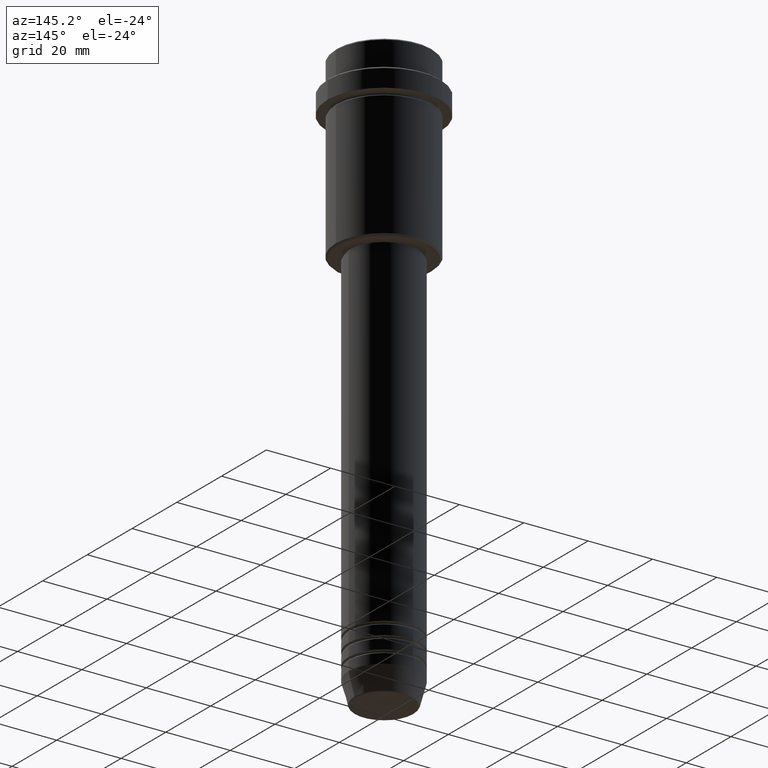
[diagram: clean part render]
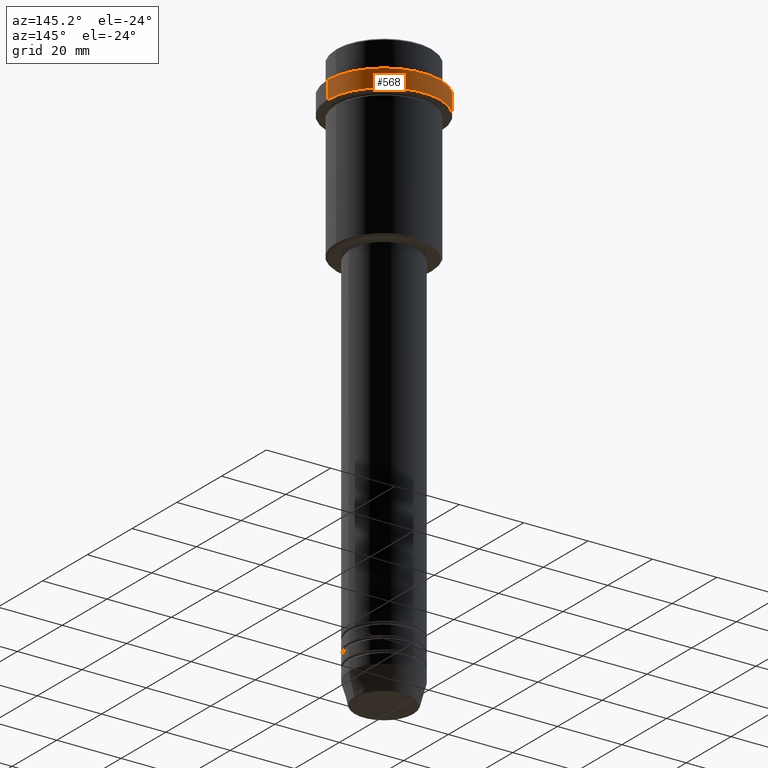
[diagram: same view with one face highlighted and labeled with its STEP entity id]
A machine part, auxiliary view. The second image highlights one B-rep face of the part: STEP entity #568.
In plain terms, the highlighted cylindrical surface (partial cylindrical patch) has radius 17.5 mm, axis along (-0, -0, 1).
Its self-contained STEP definition (entity closure, byte-faithful):
#37 = CIRCLE ( 'NONE', #658, 17.50000000000000000 ) ;
#96 = VERTEX_POINT ( 'NONE', #891 ) ;
#120 = EDGE_CURVE ( 'NONE', #700, #96, #144, .T. ) ;
#123 = ORIENTED_EDGE ( 'NONE', *, *, #276, .F. ) ;
#130 = CIRCLE ( 'NONE', #1136, 17.50000000000000000 ) ;
#144 = LINE ( 'NONE', #336, #954 ) ;
#172 = CARTESIAN_POINT ( 'NONE',  ( 17.50000000000000000, 0.000000000000000000, 0.000000000000000000 ) ) ;
#192 = CARTESIAN_POINT ( 'NONE',  ( 17.50000000000000000, 0.000000000000000000, -9.500000000000000000 ) ) ;
#217 = CARTESIAN_POINT ( 'NONE',  ( 0.000000000000000000, 0.000000000000000000, -9.500000000000000000 ) ) ;
#237 = DIRECTION ( 'NONE',  ( -0.000000000000000000, -0.000000000000000000, 1.000000000000000000 ) ) ;
#256 = VERTEX_POINT ( 'NONE', #1361 ) ;
#276 = EDGE_CURVE ( 'NONE', #256, #734, #1033, .T. ) ;
#336 = CARTESIAN_POINT ( 'NONE',  ( -17.50000000000000000, 2.143131898507868248E-15, 0.000000000000000000 ) ) ;
#346 = CARTESIAN_POINT ( 'NONE',  ( 0.000000000000000000, 0.000000000000000000, -15.00000000000000000 ) ) ;
#506 = ORIENTED_EDGE ( 'NONE', *, *, #933, .T. ) ;
#551 = EDGE_CURVE ( 'NONE', #256, #700, #130, .T. ) ;
#563 = DIRECTION ( 'NONE',  ( -0.000000000000000000, -0.000000000000000000, 1.000000000000000000 ) ) ;
#568 = ADVANCED_FACE ( 'NONE', ( #577 ), #690, .T. ) ;
#577 = FACE_OUTER_BOUND ( 'NONE', #1017, .T. ) ;
#582 = DIRECTION ( 'NONE',  ( -0.000000000000000000, -0.000000000000000000, 1.000000000000000000 ) ) ;
#655 = DIRECTION ( 'NONE',  ( 0.000000000000000000, 0.000000000000000000, -1.000000000000000000 ) ) ;
#658 = AXIS2_PLACEMENT_3D ( 'NONE', #217, #655, #1300 ) ;
#690 = CYLINDRICAL_SURFACE ( 'NONE', #1224, 17.50000000000000000 ) ;
#700 = VERTEX_POINT ( 'NONE', #961 ) ;
#734 = VERTEX_POINT ( 'NONE', #192 ) ;
#787 = CARTESIAN_POINT ( 'NONE',  ( 0.000000000000000000, 0.000000000000000000, 0.000000000000000000 ) ) ;
#891 = CARTESIAN_POINT ( 'NONE',  ( -17.50000000000000000, 2.143131898507868248E-15, -9.500000000000000000 ) ) ;
#908 = DIRECTION ( 'NONE',  ( 1.000000000000000000, 0.000000000000000000, 0.000000000000000000 ) ) ;
#933 = EDGE_CURVE ( 'NONE', #96, #734, #37, .T. ) ;
#954 = VECTOR ( 'NONE', #237, 1000.000000000000000 ) ;
#961 = CARTESIAN_POINT ( 'NONE',  ( -17.50000000000000000, 2.143131898507868248E-15, -15.00000000000000000 ) ) ;
#1017 = EDGE_LOOP ( 'NONE', ( #1034, #1219, #506, #123 ) ) ;
#1033 = LINE ( 'NONE', #172, #1197 ) ;
#1034 = ORIENTED_EDGE ( 'NONE', *, *, #551, .T. ) ;
#1128 = DIRECTION ( 'NONE',  ( 1.000000000000000000, 0.000000000000000000, 0.000000000000000000 ) ) ;
#1136 = AXIS2_PLACEMENT_3D ( 'NONE', #346, #563, #1128 ) ;
#1177 = DIRECTION ( 'NONE',  ( -0.000000000000000000, -0.000000000000000000, 1.000000000000000000 ) ) ;
#1197 = VECTOR ( 'NONE', #1177, 1000.000000000000000 ) ;
#1219 = ORIENTED_EDGE ( 'NONE', *, *, #120, .T. ) ;
#1224 = AXIS2_PLACEMENT_3D ( 'NONE', #787, #582, #908 ) ;
#1300 = DIRECTION ( 'NONE',  ( 1.000000000000000000, 0.000000000000000000, 0.000000000000000000 ) ) ;
#1361 = CARTESIAN_POINT ( 'NONE',  ( 17.50000000000000000, 0.000000000000000000, -15.00000000000000000 ) ) ;